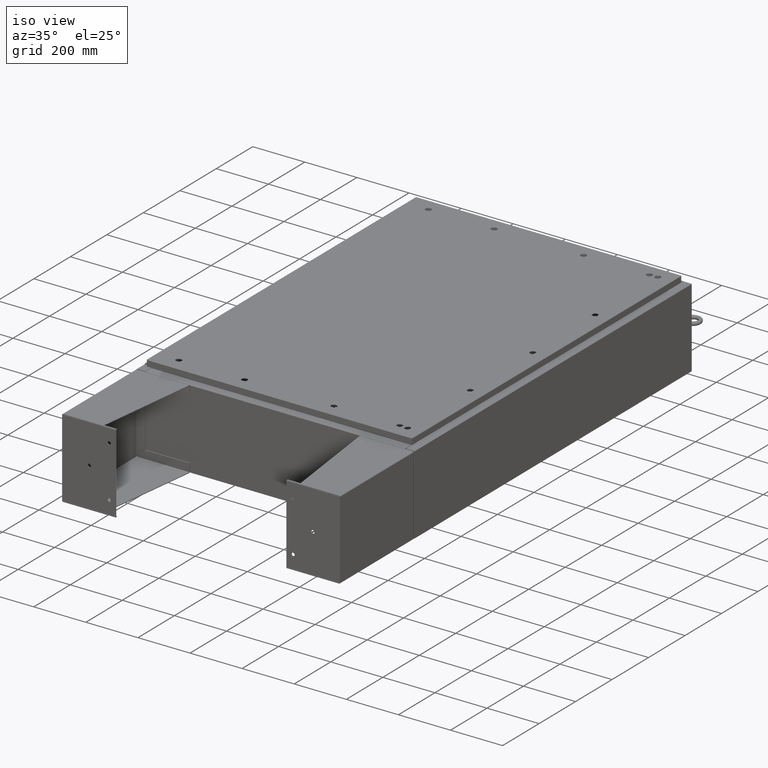
[diagram: clean part render]
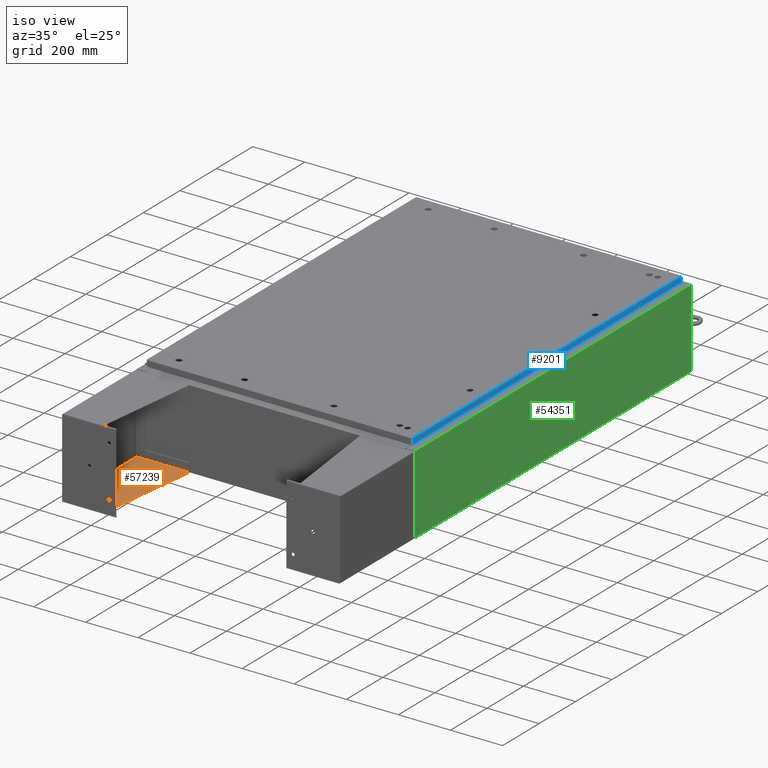
[diagram: same view with three faces highlighted in distinct colors, each labeled with its STEP entity id]
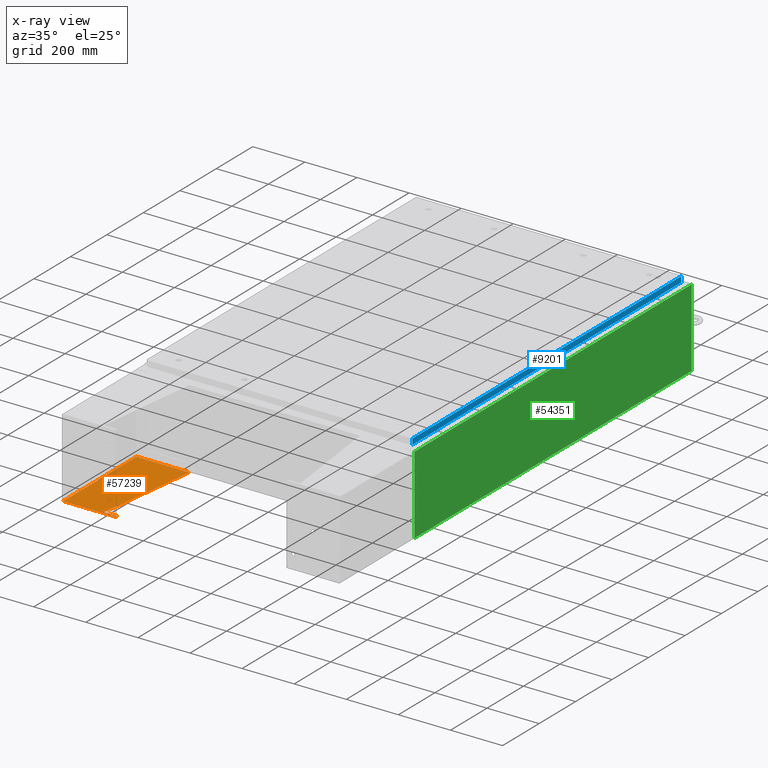
[diagram: x-ray of the same camera — body ghosted, the three highlighted faces saturated]
A machine part, iso view with three faces highlighted in distinct colors.
The next image is the same camera in x-ray (body ghosted, the three faces saturated) — at least one of them is partly hidden behind the body in this view.
Their STEP definitions:

[orange] entity #57239 — the highlighted planar face has unit normal (-0, -0, 1).
#555 = DIRECTION ( 'NONE',  ( 0.0000000000000000000, 0.0000000000000000000, 1.000000000000000000 ) ) ;
#1589 = CARTESIAN_POINT ( 'NONE',  ( 5.895999999999999900, -7.999999999999999100, 0.03900000000001561900 ) ) ;
#1618 = EDGE_CURVE ( 'NONE', #31367, #29867, #16535, .T. ) ;
#2954 = CARTESIAN_POINT ( 'NONE',  ( 5.896000000000029200, -7.999999999999999100, 8.001000000000015400 ) ) ;
#4954 = CARTESIAN_POINT ( 'NONE',  ( 5.896000000000020300, -7.749999999999999100, 6.052216497445950700 ) ) ;
#6796 = LINE ( 'NONE', #27749, #31162 ) ;
#8194 = ORIENTED_EDGE ( 'NONE', *, *, #43090, .F. ) ;
#8855 = CARTESIAN_POINT ( 'NONE',  ( 5.896000000000028300, -7.749999999999999100, 8.001000000000031400 ) ) ;
#11491 = DIRECTION ( 'NONE',  ( 0.0000000000000000000, 1.000000000000000000, 0.0000000000000000000 ) ) ;
#12595 = CARTESIAN_POINT ( 'NONE',  ( 5.896000000000029200, -7.999999999999999100, 8.001000000000015400 ) ) ;
#12832 = VECTOR ( 'NONE', #20256, 39.37007874015748100 ) ;
#14638 = EDGE_LOOP ( 'NONE', ( #20963, #21012, #39475, #58563, #62374, #8194 ) ) ;
#16535 = LINE ( 'NONE', #35510, #53884 ) ;
#19454 = VERTEX_POINT ( 'NONE', #49601 ) ;
#20256 = DIRECTION ( 'NONE',  ( -3.550958521948298200E-015, 0.0000000000000000000, -1.000000000000000000 ) ) ;
#20963 = ORIENTED_EDGE ( 'NONE', *, *, #1618, .F. ) ;
#21012 = ORIENTED_EDGE ( 'NONE', *, *, #54937, .T. ) ;
#22762 = LINE ( 'NONE', #1589, #34212 ) ;
#27188 = VERTEX_POINT ( 'NONE', #61875 ) ;
#27749 = CARTESIAN_POINT ( 'NONE',  ( 5.896000000000023000, -7.749999999999999100, 6.052216497445950700 ) ) ;
#29867 = VERTEX_POINT ( 'NONE', #12595 ) ;
#31162 = VECTOR ( 'NONE', #57140, 39.37007874015748100 ) ;
#31197 = VECTOR ( 'NONE', #39226, 39.37007874015748100 ) ;
#31367 = VERTEX_POINT ( 'NONE', #8855 ) ;
#32249 = DIRECTION ( 'NONE',  ( 3.550958521948298200E-015, 0.0000000000000000000, 1.000000000000000000 ) ) ;
#33949 = DIRECTION ( 'NONE',  ( -0.0000000000000000000, -1.000000000000000000, -0.0000000000000000000 ) ) ;
#34212 = VECTOR ( 'NONE', #11491, 39.37007874015748100 ) ;
#35510 = CARTESIAN_POINT ( 'NONE',  ( 5.896000000000029200, -7.999999999999999100, 8.001000000000015400 ) ) ;
#38264 = VERTEX_POINT ( 'NONE', #4954 ) ;
#38749 = LINE ( 'NONE', #54335, #12832 ) ;
#39226 = DIRECTION ( 'NONE',  ( -3.550958521948298200E-015, -0.0000000000000000000, -1.000000000000000000 ) ) ;
#39475 = ORIENTED_EDGE ( 'NONE', *, *, #54642, .T. ) ;
#43090 = EDGE_CURVE ( 'NONE', #29867, #47458, #45699, .T. ) ;
#44939 = AXIS2_PLACEMENT_3D ( 'NONE', #2954, #61425, #32249 ) ;
#45172 = FACE_OUTER_BOUND ( 'NONE', #14638, .T. ) ;
#45699 = LINE ( 'NONE', #49019, #31197 ) ;
#47458 = VERTEX_POINT ( 'NONE', #59336 ) ;
#48616 = EDGE_CURVE ( 'NONE', #27188, #19454, #50016, .T. ) ;
#49019 = CARTESIAN_POINT ( 'NONE',  ( 5.895999999999999900, -7.999999999999999100, 1.529834876451987200E-014 ) ) ;
#49601 = CARTESIAN_POINT ( 'NONE',  ( 5.896000000000029200, 7.857000000000002000, 8.001000000000015400 ) ) ;
#50016 = LINE ( 'NONE', #58751, #61430 ) ;
#53884 = VECTOR ( 'NONE', #33949, 39.37007874015748100 ) ;
#54335 = CARTESIAN_POINT ( 'NONE',  ( 5.896000000000028300, -7.749999999999999100, 8.001000000000031400 ) ) ;
#54642 = EDGE_CURVE ( 'NONE', #38264, #19454, #6796, .T. ) ;
#54937 = EDGE_CURVE ( 'NONE', #31367, #38264, #38749, .T. ) ;
#56560 = PLANE ( 'NONE',  #44939 ) ;
#57140 = DIRECTION ( 'NONE',  ( 4.399772607369798900E-016, 0.9922942345449394800, 0.1239038017531047700 ) ) ;
#57239 = ADVANCED_FACE ( 'NONE', ( #45172 ), #56560, .T. ) ;
#58563 = ORIENTED_EDGE ( 'NONE', *, *, #48616, .F. ) ;
#58751 = CARTESIAN_POINT ( 'NONE',  ( 5.896000000000014100, 7.857000000000001100, 0.03900000000001561900 ) ) ;
#59212 = EDGE_CURVE ( 'NONE', #47458, #27188, #22762, .T. ) ;
#59336 = CARTESIAN_POINT ( 'NONE',  ( 5.895999999999999900, -7.999999999999999100, 0.03900000000001561900 ) ) ;
#61425 = DIRECTION ( 'NONE',  ( -1.000000000000000000, 0.0000000000000000000, 3.550958521948298200E-015 ) ) ;
#61430 = VECTOR ( 'NONE', #555, 39.37007874015748100 ) ;
#61875 = CARTESIAN_POINT ( 'NONE',  ( 5.895999999999999900, 7.857000000000002000, 0.03900000000001561900 ) ) ;
#62374 = ORIENTED_EDGE ( 'NONE', *, *, #59212, .F. ) ;

[blue] entity #9201 — the highlighted planar face has unit normal (1, 0, 0).
#1779 = CARTESIAN_POINT ( 'NONE',  ( 20.07800000000000300, 29.00515786437627600, -0.9376999999999997600 ) ) ;
#4020 = ORIENTED_EDGE ( 'NONE', *, *, #46350, .F. ) ;
#6063 = CARTESIAN_POINT ( 'NONE',  ( 20.07799999999999600, 0.0000000000000000000, -0.08769999999999550400 ) ) ;
#9201 = ADVANCED_FACE ( 'NONE', ( #55800 ), #58778, .T. ) ;
#10778 = DIRECTION ( 'NONE',  ( -5.064839849203732200E-015, -6.982962677686267500E-015, 1.000000000000000000 ) ) ;
#11392 = DIRECTION ( 'NONE',  ( 5.064839849203732200E-015, 0.0000000000000000000, -1.000000000000000000 ) ) ;
#13302 = VECTOR ( 'NONE', #18208, 39.37007874015748100 ) ;
#15168 = CARTESIAN_POINT ( 'NONE',  ( 20.07799999999999600, 29.00515786437627600, 3.044946029756619200E-013 ) ) ;
#16496 = EDGE_CURVE ( 'NONE', #62122, #26467, #25589, .T. ) ;
#18208 = DIRECTION ( 'NONE',  ( -5.064839849203732200E-015, -6.982962677686267500E-015, 1.000000000000000000 ) ) ;
#19613 = CARTESIAN_POINT ( 'NONE',  ( 20.07800000000000300, -29.00515786437625500, -0.9376999999999996400 ) ) ;
#21703 = CARTESIAN_POINT ( 'NONE',  ( 20.07799999999999600, 0.0000000000000000000, 1.019526681483241100E-013 ) ) ;
#24519 = VERTEX_POINT ( 'NONE', #26170 ) ;
#25589 = LINE ( 'NONE', #15168, #62931 ) ;
#26170 = CARTESIAN_POINT ( 'NONE',  ( 20.07799999999999600, -29.00515786437625800, -0.08769999999999550400 ) ) ;
#26467 = VERTEX_POINT ( 'NONE', #33328 ) ;
#32011 = LINE ( 'NONE', #42315, #53353 ) ;
#33328 = CARTESIAN_POINT ( 'NONE',  ( 20.07799999999999600, 29.00515786437627600, -0.08769999999999550400 ) ) ;
#34312 = EDGE_LOOP ( 'NONE', ( #4020, #46647, #47829, #61360 ) ) ;
#36912 = EDGE_CURVE ( 'NONE', #62122, #43417, #32011, .T. ) ;
#37141 = DIRECTION ( 'NONE',  ( 1.000000000000000000, 0.0000000000000000000, 5.064839849203732200E-015 ) ) ;
#37236 = DIRECTION ( 'NONE',  ( 0.0000000000000000000, -1.000000000000000000, 0.0000000000000000000 ) ) ;
#40738 = LINE ( 'NONE', #47423, #13302 ) ;
#42315 = CARTESIAN_POINT ( 'NONE',  ( 20.07800000000000300, -29.09399999999999100, -0.9376999999999997600 ) ) ;
#43417 = VERTEX_POINT ( 'NONE', #19613 ) ;
#46350 = EDGE_CURVE ( 'NONE', #43417, #24519, #40738, .T. ) ;
#46647 = ORIENTED_EDGE ( 'NONE', *, *, #36912, .F. ) ;
#47423 = CARTESIAN_POINT ( 'NONE',  ( 20.07799999999999600, -29.00515786437625800, -0.07469999999999962800 ) ) ;
#47829 = ORIENTED_EDGE ( 'NONE', *, *, #16496, .T. ) ;
#53081 = VECTOR ( 'NONE', #59470, 39.37007874015748100 ) ;
#53353 = VECTOR ( 'NONE', #37236, 39.37007874015748100 ) ;
#55800 = FACE_OUTER_BOUND ( 'NONE', #34312, .T. ) ;
#55904 = EDGE_CURVE ( 'NONE', #26467, #24519, #61455, .T. ) ;
#58778 = PLANE ( 'NONE',  #61046 ) ;
#59470 = DIRECTION ( 'NONE',  ( 0.0000000000000000000, -1.000000000000000000, 0.0000000000000000000 ) ) ;
#61046 = AXIS2_PLACEMENT_3D ( 'NONE', #21703, #37141, #11392 ) ;
#61360 = ORIENTED_EDGE ( 'NONE', *, *, #55904, .T. ) ;
#61455 = LINE ( 'NONE', #6063, #53081 ) ;
#62122 = VERTEX_POINT ( 'NONE', #1779 ) ;
#62931 = VECTOR ( 'NONE', #10778, 39.37007874015748100 ) ;

[green] entity #54351 — the highlighted planar face has unit normal (-1, 0, 0).
#1718 = VECTOR ( 'NONE', #37847, 39.37007874015748100 ) ;
#1876 = VECTOR ( 'NONE', #20273, 39.37007874015748100 ) ;
#2925 = ORIENTED_EDGE ( 'NONE', *, *, #19100, .T. ) ;
#8933 = CARTESIAN_POINT ( 'NONE',  ( 20.99999999999999600, -29.92530000000000400, 0.01299999999999764900 ) ) ;
#9115 = FACE_OUTER_BOUND ( 'NONE', #10448, .T. ) ;
#10448 = EDGE_LOOP ( 'NONE', ( #40533, #2925, #32167, #23118 ) ) ;
#11661 = AXIS2_PLACEMENT_3D ( 'NONE', #49932, #20762, #54852 ) ;
#11788 = CARTESIAN_POINT ( 'NONE',  ( 20.99999999999999600, 29.92530000000000000, -7.723170125390783800E-014 ) ) ;
#12112 = CARTESIAN_POINT ( 'NONE',  ( 21.00000000000003900, 29.92530000000000400, 11.83760000000000000 ) ) ;
#14595 = LINE ( 'NONE', #12112, #1718 ) ;
#14737 = LINE ( 'NONE', #30109, #1876 ) ;
#19100 = EDGE_CURVE ( 'NONE', #54956, #40310, #14737, .T. ) ;
#20273 = DIRECTION ( 'NONE',  ( -3.665280361804584200E-015, 0.0000000000000000000, -1.000000000000000000 ) ) ;
#20762 = DIRECTION ( 'NONE',  ( -1.000000000000000000, 0.0000000000000000000, 3.665280361804584200E-015 ) ) ;
#23118 = ORIENTED_EDGE ( 'NONE', *, *, #50569, .T. ) ;
#23466 = VECTOR ( 'NONE', #45899, 39.37007874015748100 ) ;
#23936 = CARTESIAN_POINT ( 'NONE',  ( 20.99999999999999600, 29.92530000000000400, 0.01299999999999764400 ) ) ;
#26552 = LINE ( 'NONE', #11788, #23466 ) ;
#26737 = EDGE_CURVE ( 'NONE', #31605, #54956, #14595, .T. ) ;
#30109 = CARTESIAN_POINT ( 'NONE',  ( 20.99999999999999600, -29.92530000000000400, -7.723170125390783800E-014 ) ) ;
#30878 = EDGE_CURVE ( 'NONE', #31428, #40310, #33205, .T. ) ;
#31428 = VERTEX_POINT ( 'NONE', #23936 ) ;
#31605 = VERTEX_POINT ( 'NONE', #44637 ) ;
#32167 = ORIENTED_EDGE ( 'NONE', *, *, #30878, .F. ) ;
#33205 = LINE ( 'NONE', #35055, #56085 ) ;
#35055 = CARTESIAN_POINT ( 'NONE',  ( 20.99999999999999600, -29.92530000000000400, 0.01299999999999764400 ) ) ;
#35175 = CARTESIAN_POINT ( 'NONE',  ( 21.00000000000003900, -29.92530000000000400, 11.83760000000000000 ) ) ;
#37847 = DIRECTION ( 'NONE',  ( -0.0000000000000000000, -1.000000000000000000, -0.0000000000000000000 ) ) ;
#40310 = VERTEX_POINT ( 'NONE', #8933 ) ;
#40533 = ORIENTED_EDGE ( 'NONE', *, *, #26737, .T. ) ;
#44637 = CARTESIAN_POINT ( 'NONE',  ( 21.00000000000003900, 29.92530000000000400, 11.83760000000000000 ) ) ;
#44867 = PLANE ( 'NONE',  #11661 ) ;
#45899 = DIRECTION ( 'NONE',  ( 3.665280361804584200E-015, 0.0000000000000000000, 1.000000000000000000 ) ) ;
#49932 = CARTESIAN_POINT ( 'NONE',  ( 20.99999999999999600, 0.0000000000000000000, -7.723170125390783800E-014 ) ) ;
#50569 = EDGE_CURVE ( 'NONE', #31428, #31605, #26552, .T. ) ;
#54351 = ADVANCED_FACE ( 'NONE', ( #9115 ), #44867, .F. ) ;
#54421 = DIRECTION ( 'NONE',  ( -0.0000000000000000000, -1.000000000000000000, -0.0000000000000000000 ) ) ;
#54852 = DIRECTION ( 'NONE',  ( 3.665280361804584200E-015, 0.0000000000000000000, 1.000000000000000000 ) ) ;
#54956 = VERTEX_POINT ( 'NONE', #35175 ) ;
#56085 = VECTOR ( 'NONE', #54421, 39.37007874015748100 ) ;